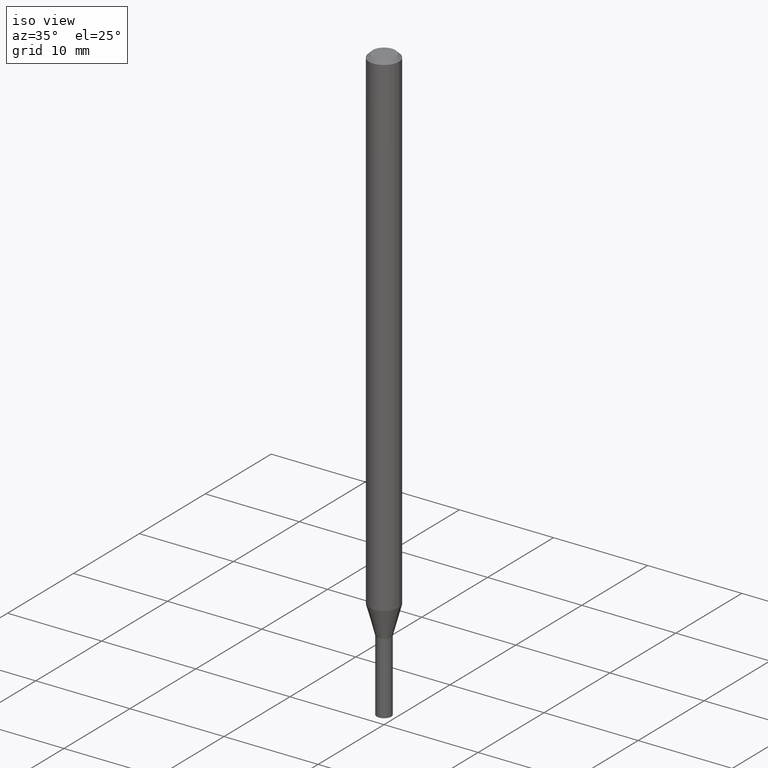
[diagram: clean part render]
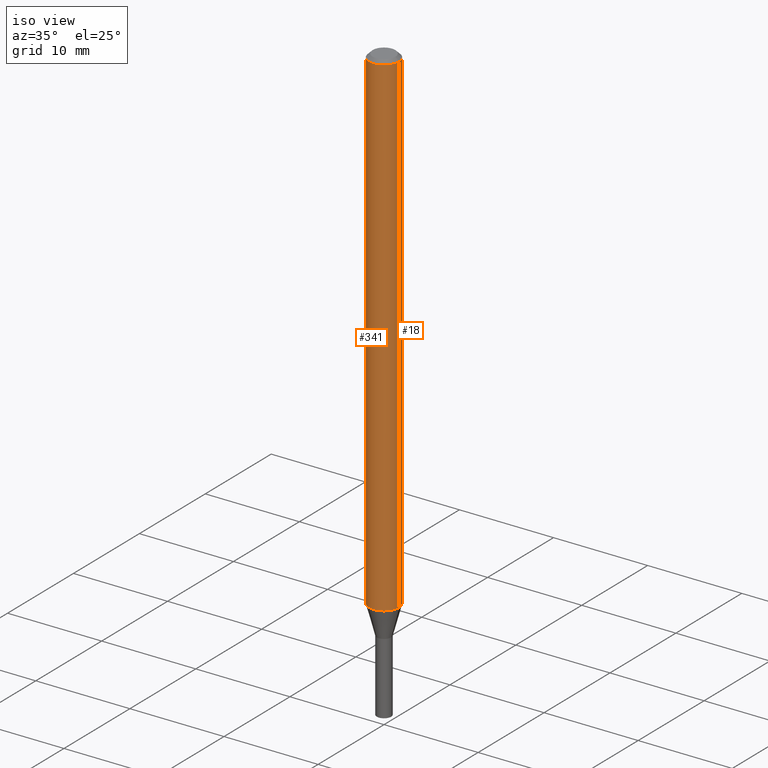
[diagram: same view with one multi-face feature highlighted, each face labeled with its STEP entity id]
A machine part, iso view. The highlighted faces form ONE feature: a constant-radius fillet chain: 2 tangent blend faces with common blend radius 1.5875 mm. The faces share edges in the B-rep.
Their STEP definitions:
[1] entity #18 (Cylinder):
#7 = DIRECTION ( 'NONE',  ( -2.445468806185136597E-29, 3.491481338843145583E-15, 1.000000000000000000 ) ) ;
#14 = CIRCLE ( 'NONE', #230, 0.06250000000000000000 ) ;
#18 = ADVANCED_FACE ( 'NONE', ( #319 ), #168, .T. ) ;
#22 = EDGE_CURVE ( 'NONE', #280, #139, #462, .T. ) ;
#46 = DIRECTION ( 'NONE',  ( 1.000000000000000000, -6.982962677686266711E-15, 0.000000000000000000 ) ) ;
#48 = CARTESIAN_POINT ( 'NONE',  ( 0.06250000000000000000, -4.888073874380388472E-16, -0.01499999999999999944 ) ) ;
#101 = EDGE_CURVE ( 'NONE', #460, #322, #368, .T. ) ;
#119 = CARTESIAN_POINT ( 'NONE',  ( 3.668203209277705088E-31, -5.237222008264718399E-17, -0.01499999999999999944 ) ) ;
#126 = ORIENTED_EDGE ( 'NONE', *, *, #400, .F. ) ;
#135 = ORIENTED_EDGE ( 'NONE', *, *, #22, .T. ) ;
#139 = VERTEX_POINT ( 'NONE', #150 ) ;
#147 = CARTESIAN_POINT ( 'NONE',  ( 5.083416424034546588E-29, -7.257771408572077491E-15, -2.078708348754010782 ) ) ;
#150 = CARTESIAN_POINT ( 'NONE',  ( -0.06250000000000000000, -3.210982604477299866E-15, -0.01499999999999999944 ) ) ;
#156 = EDGE_CURVE ( 'NONE', #460, #280, #14, .T. ) ;
#159 = VECTOR ( 'NONE', #214, 39.37007874015748143 ) ;
#163 = EDGE_LOOP ( 'NONE', ( #358, #135, #126, #294 ) ) ;
#168 = CYLINDRICAL_SURFACE ( 'NONE', #357, 0.06250000000000000000 ) ;
#179 = DIRECTION ( 'NONE',  ( -2.445468806185136877E-29, 3.491481338843145188E-15, 1.000000000000000000 ) ) ;
#181 = VECTOR ( 'NONE', #179, 39.37007874015748143 ) ;
#195 = AXIS2_PLACEMENT_3D ( 'NONE', #119, #270, #46 ) ;
#213 = CARTESIAN_POINT ( 'NONE',  ( 0.06250000000000000000, -7.694206575927469161E-15, -2.078708348754010782 ) ) ;
#214 = DIRECTION ( 'NONE',  ( -2.445468806185136877E-29, 3.491481338843145188E-15, 1.000000000000000000 ) ) ;
#230 = AXIS2_PLACEMENT_3D ( 'NONE', #147, #7, #301 ) ;
#254 = DIRECTION ( 'NONE',  ( 1.000000000000000000, -6.982962677686266711E-15, 4.876176775795935793E-29 ) ) ;
#270 = DIRECTION ( 'NONE',  ( -2.445468806185136597E-29, 3.491481338843145583E-15, 1.000000000000000000 ) ) ;
#280 = VERTEX_POINT ( 'NONE', #411 ) ;
#293 = CARTESIAN_POINT ( 'NONE',  ( 0.000000000000000000, 0.000000000000000000, 0.000000000000000000 ) ) ;
#294 = ORIENTED_EDGE ( 'NONE', *, *, #101, .F. ) ;
#301 = DIRECTION ( 'NONE',  ( 1.000000000000000000, -6.982962677686262766E-15, 0.000000000000000000 ) ) ;
#319 = FACE_OUTER_BOUND ( 'NONE', #163, .T. ) ;
#322 = VERTEX_POINT ( 'NONE', #48 ) ;
#357 = AXIS2_PLACEMENT_3D ( 'NONE', #293, #428, #254 ) ;
#358 = ORIENTED_EDGE ( 'NONE', *, *, #156, .T. ) ;
#361 = CARTESIAN_POINT ( 'NONE',  ( 0.06250000000000000000, -4.364351673553916694E-16, 3.047610484872459871E-30 ) ) ;
#368 = LINE ( 'NONE', #361, #181 ) ;
#390 = CARTESIAN_POINT ( 'NONE',  ( -0.06250000000000000000, 4.440892098500626162E-16, -3.074334431409316114E-30 ) ) ;
#400 = EDGE_CURVE ( 'NONE', #322, #139, #419, .T. ) ;
#411 = CARTESIAN_POINT ( 'NONE',  ( -0.06250000000000000000, -6.813682198722014086E-15, -2.078708348754010782 ) ) ;
#419 = CIRCLE ( 'NONE', #195, 0.06250000000000000000 ) ;
#428 = DIRECTION ( 'NONE',  ( -2.445468806185136597E-29, 3.491481338843145583E-15, 1.000000000000000000 ) ) ;
#460 = VERTEX_POINT ( 'NONE', #213 ) ;
#462 = LINE ( 'NONE', #390, #159 ) ;
[2] entity #341 (Cylinder):
#22 = EDGE_CURVE ( 'NONE', #280, #139, #462, .T. ) ;
#48 = CARTESIAN_POINT ( 'NONE',  ( 0.06250000000000000000, -4.888073874380388472E-16, -0.01499999999999999944 ) ) ;
#98 = ORIENTED_EDGE ( 'NONE', *, *, #101, .T. ) ;
#101 = EDGE_CURVE ( 'NONE', #460, #322, #368, .T. ) ;
#131 = ORIENTED_EDGE ( 'NONE', *, *, #22, .F. ) ;
#137 = DIRECTION ( 'NONE',  ( 1.000000000000000000, -6.982962677686262766E-15, 0.000000000000000000 ) ) ;
#138 = AXIS2_PLACEMENT_3D ( 'NONE', #175, #288, #137 ) ;
#139 = VERTEX_POINT ( 'NONE', #150 ) ;
#150 = CARTESIAN_POINT ( 'NONE',  ( -0.06250000000000000000, -3.210982604477299866E-15, -0.01499999999999999944 ) ) ;
#154 = CARTESIAN_POINT ( 'NONE',  ( 0.000000000000000000, 0.000000000000000000, 0.000000000000000000 ) ) ;
#159 = VECTOR ( 'NONE', #214, 39.37007874015748143 ) ;
#162 = ORIENTED_EDGE ( 'NONE', *, *, #191, .F. ) ;
#175 = CARTESIAN_POINT ( 'NONE',  ( 5.083416424034546588E-29, -7.257771408572077491E-15, -2.078708348754010782 ) ) ;
#179 = DIRECTION ( 'NONE',  ( -2.445468806185136877E-29, 3.491481338843145188E-15, 1.000000000000000000 ) ) ;
#181 = VECTOR ( 'NONE', #179, 39.37007874015748143 ) ;
#191 = EDGE_CURVE ( 'NONE', #139, #322, #370, .T. ) ;
#213 = CARTESIAN_POINT ( 'NONE',  ( 0.06250000000000000000, -7.694206575927469161E-15, -2.078708348754010782 ) ) ;
#214 = DIRECTION ( 'NONE',  ( -2.445468806185136877E-29, 3.491481338843145188E-15, 1.000000000000000000 ) ) ;
#219 = CARTESIAN_POINT ( 'NONE',  ( 3.668203209277705088E-31, -5.237222008264718399E-17, -0.01499999999999999944 ) ) ;
#223 = AXIS2_PLACEMENT_3D ( 'NONE', #154, #404, #377 ) ;
#232 = EDGE_LOOP ( 'NONE', ( #131, #429, #98, #162 ) ) ;
#240 = CYLINDRICAL_SURFACE ( 'NONE', #223, 0.06250000000000000000 ) ;
#259 = DIRECTION ( 'NONE',  ( 1.000000000000000000, -6.982962677686266711E-15, 0.000000000000000000 ) ) ;
#267 = DIRECTION ( 'NONE',  ( -2.445468806185136597E-29, 3.491481338843145583E-15, 1.000000000000000000 ) ) ;
#280 = VERTEX_POINT ( 'NONE', #411 ) ;
#288 = DIRECTION ( 'NONE',  ( -2.445468806185136597E-29, 3.491481338843145583E-15, 1.000000000000000000 ) ) ;
#290 = AXIS2_PLACEMENT_3D ( 'NONE', #219, #267, #259 ) ;
#322 = VERTEX_POINT ( 'NONE', #48 ) ;
#337 = FACE_OUTER_BOUND ( 'NONE', #232, .T. ) ;
#339 = CIRCLE ( 'NONE', #138, 0.06250000000000000000 ) ;
#341 = ADVANCED_FACE ( 'NONE', ( #337 ), #240, .T. ) ;
#361 = CARTESIAN_POINT ( 'NONE',  ( 0.06250000000000000000, -4.364351673553916694E-16, 3.047610484872459871E-30 ) ) ;
#368 = LINE ( 'NONE', #361, #181 ) ;
#370 = CIRCLE ( 'NONE', #290, 0.06250000000000000000 ) ;
#377 = DIRECTION ( 'NONE',  ( 1.000000000000000000, -6.982962677686266711E-15, 4.876176775795935793E-29 ) ) ;
#390 = CARTESIAN_POINT ( 'NONE',  ( -0.06250000000000000000, 4.440892098500626162E-16, -3.074334431409316114E-30 ) ) ;
#404 = DIRECTION ( 'NONE',  ( -2.445468806185136597E-29, 3.491481338843145583E-15, 1.000000000000000000 ) ) ;
#411 = CARTESIAN_POINT ( 'NONE',  ( -0.06250000000000000000, -6.813682198722014086E-15, -2.078708348754010782 ) ) ;
#429 = ORIENTED_EDGE ( 'NONE', *, *, #440, .T. ) ;
#440 = EDGE_CURVE ( 'NONE', #280, #460, #339, .T. ) ;
#460 = VERTEX_POINT ( 'NONE', #213 ) ;
#462 = LINE ( 'NONE', #390, #159 ) ;